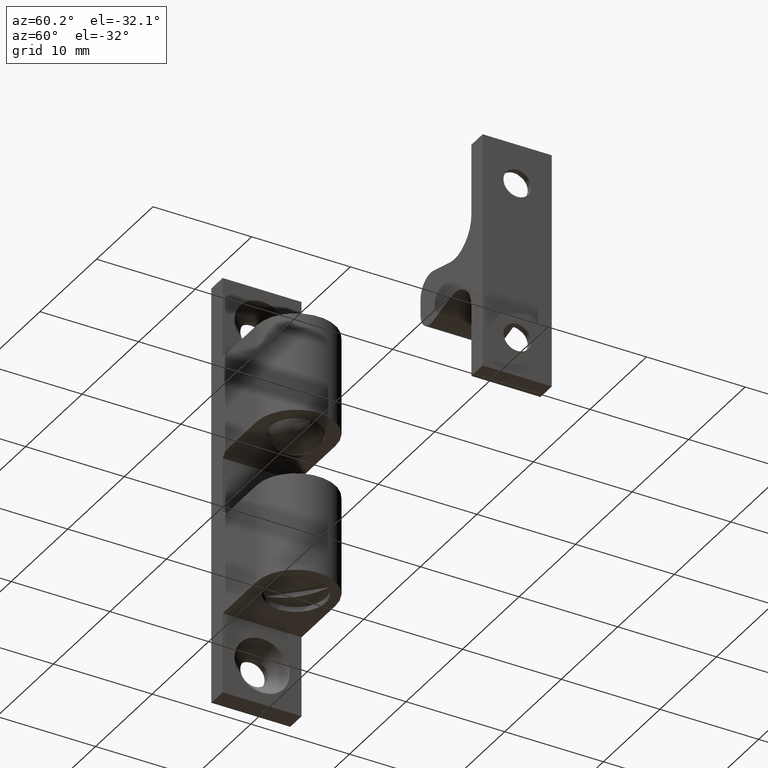
[diagram: clean part render]
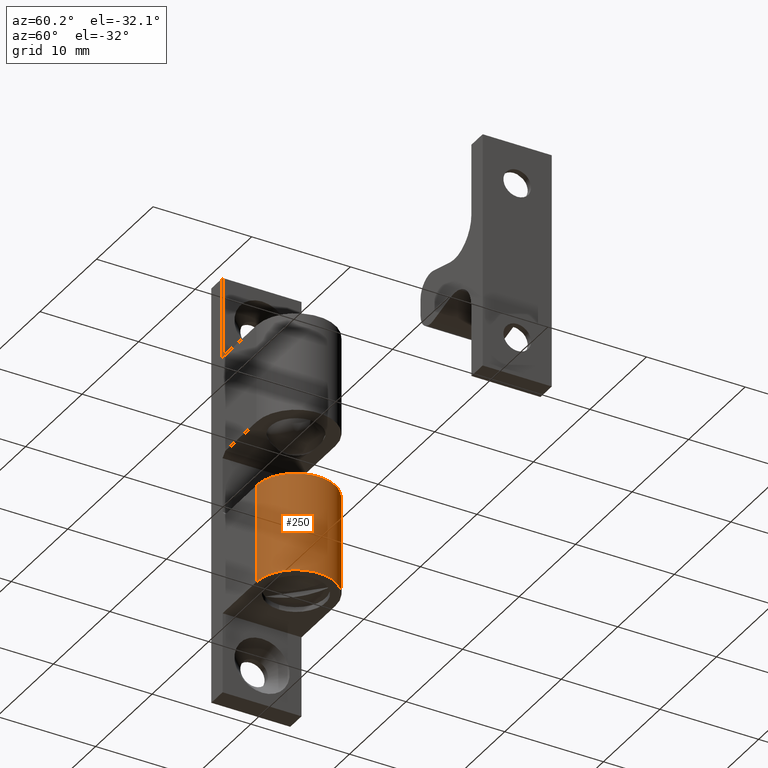
[diagram: same view with one face highlighted and labeled with its STEP entity id]
A machine part, auxiliary view. The second image highlights one B-rep face of the part: STEP entity #250.
In plain terms, the highlighted cylindrical surface (partial cylindrical patch) has radius 4 mm, axis along (0, 0, 1).
Its self-contained STEP definition (entity closure, byte-faithful):
#250=ADVANCED_FACE('',(#747),#746,.T.);
#746=CYLINDRICAL_SURFACE('',#1257,4.00000000000E+00);
#747=FACE_OUTER_BOUND('',#1258,.T.);
#1254=CARTESIAN_POINT('',(8.00000000000E+00,0.00000000000E+00,9.78500000000E+02));
#1255=DIRECTION('',(-0.00000000000E+00,-0.00000000000E+00,1.00000000000E+00));
#1256=DIRECTION('',(-1.00000000000E+00,1.22464679915E-16,0.00000000000E+00));
#1257=AXIS2_PLACEMENT_3D('',#1254,#1255,#1256);
#1258=EDGE_LOOP('',(#1624,#1625,#1626,#1627));
#1624=ORIENTED_EDGE('',*,*,#1833,.F.);
#1625=ORIENTED_EDGE('',*,*,#1844,.T.);
#1626=ORIENTED_EDGE('',*,*,#1861,.T.);
#1627=ORIENTED_EDGE('',*,*,#1862,.T.);
#1833=EDGE_CURVE('',#2570,#2577,#2578,.T.);
#1844=EDGE_CURVE('',#2570,#2641,#2648,.T.);
#1861=EDGE_CURVE('',#2641,#2763,#2764,.T.);
#1862=EDGE_CURVE('',#2763,#2577,#2770,.T.);
#2570=VERTEX_POINT('',#3401);
#2577=VERTEX_POINT('',#3405);
#2578=LINE('',#3406,#3407);
#2641=VERTEX_POINT('',#3441);
#2648=CIRCLE('',#3448,4.00000000000E+00);
#2763=VERTEX_POINT('',#3522);
#2764=LINE('',#3523,#3524);
#2770=CIRCLE('',#3529,4.00000000000E+00);
#3401=CARTESIAN_POINT('',(8.00000000000E+00,4.00000000000E+00,-3.30000000000E+00));
#3405=CARTESIAN_POINT('',(8.00000000000E+00,4.00000000000E+00,-1.33000000000E+01));
#3406=CARTESIAN_POINT('',(8.00000000000E+00,4.00000000000E+00,-3.30000000000E+00));
#3407=VECTOR('',#3408,1.00000000000E+01);
#3408=DIRECTION('',(0.00000000000E+00,0.00000000000E+00,-1.00000000000E+00));
#3441=CARTESIAN_POINT('',(8.00000000000E+00,-4.00000000000E+00,-3.30000000000E+00));
#3445=CARTESIAN_POINT('',(8.00000000000E+00,0.00000000000E+00,-3.30000000000E+00));
#3446=DIRECTION('',(0.00000000000E+00,0.00000000000E+00,-1.00000000000E+00));
#3447=DIRECTION('',(-1.83690953073E-16,1.00000000000E+00,0.00000000000E+00));
#3448=AXIS2_PLACEMENT_3D('',#3445,#3446,#3447);
#3522=CARTESIAN_POINT('',(8.00000000000E+00,-4.00000000000E+00,-1.33000000000E+01));
#3523=CARTESIAN_POINT('',(8.00000000000E+00,-4.00000000000E+00,-3.30000000000E+00));
#3524=VECTOR('',#3525,1.00000000000E+01);
#3525=DIRECTION('',(0.00000000000E+00,0.00000000000E+00,-1.00000000000E+00));
#3526=CARTESIAN_POINT('',(8.00000000000E+00,0.00000000000E+00,-1.33000000000E+01));
#3527=DIRECTION('',(-0.00000000000E+00,0.00000000000E+00,1.00000000000E+00));
#3528=DIRECTION('',(-1.00000000000E+00,-0.00000000000E+00,-0.00000000000E+00));
#3529=AXIS2_PLACEMENT_3D('',#3526,#3527,#3528);